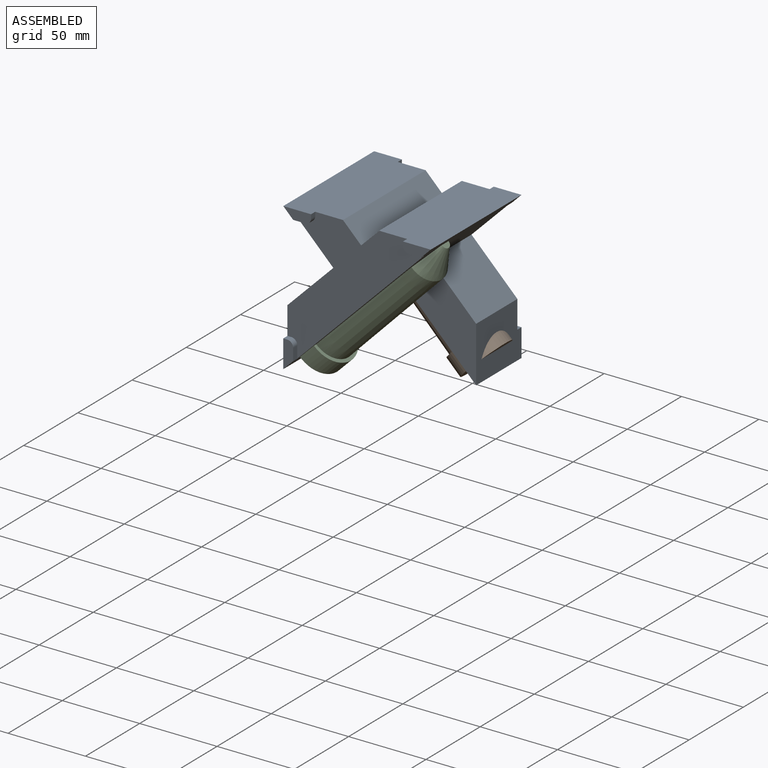
[diagram: assembled view]
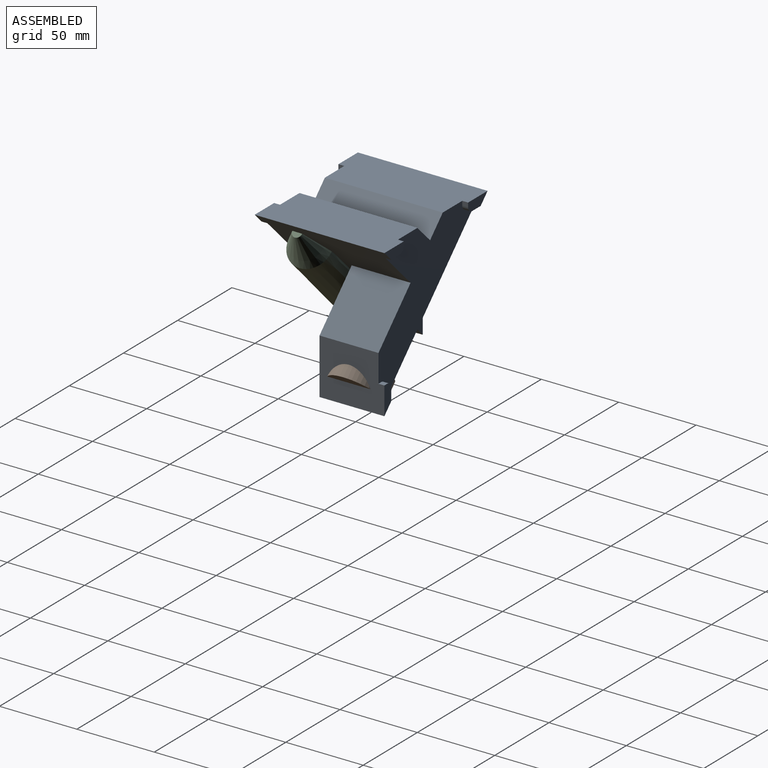
[diagram: assembled view, second angle]
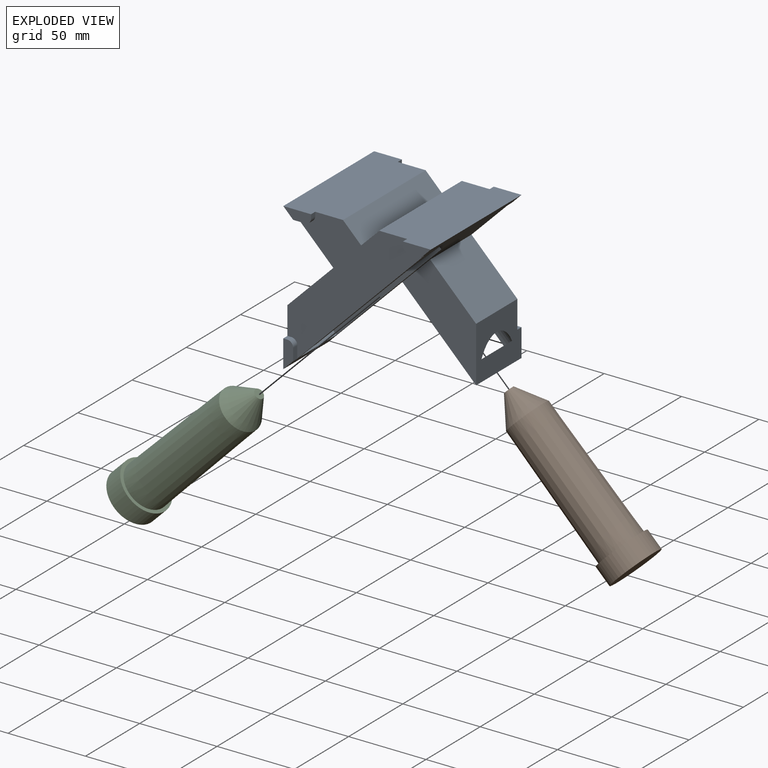
[diagram: exploded view]
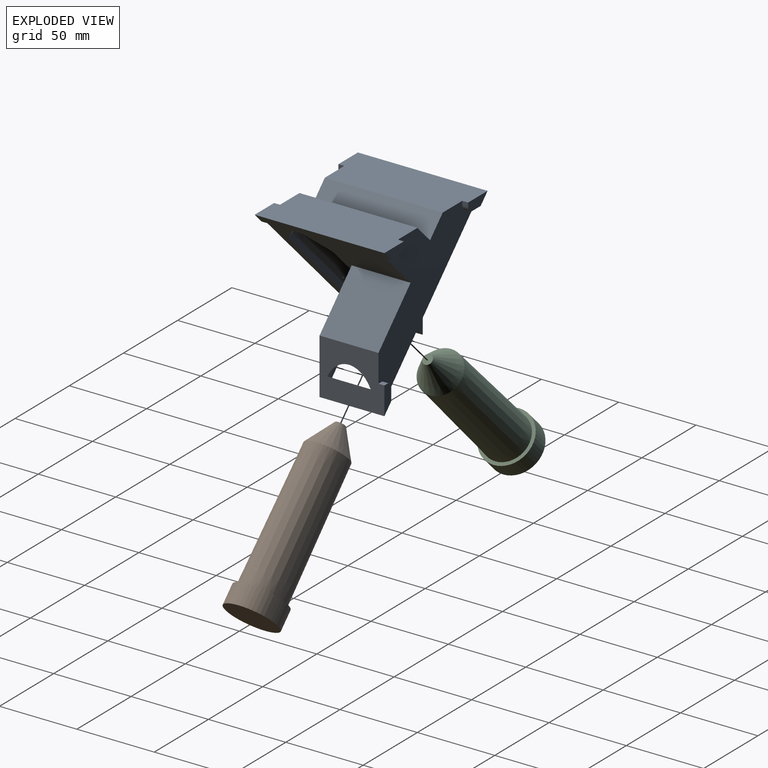
[diagram: exploded view, second angle]
ASSEMBLY  parts=3 mates=4
PART A: 50 faces, bbox 105.8x83.8x95.3 mm
  f0: plane 95.25x95.25mm, normal (-0.71,0,0.71), area 3600.8mm2, adj f3,f4,f5,f9,f10,f21,f22,f23
  f1: plane 95.25x95.25mm, normal (0.71,0,0.71), area 3600.8mm2, adj f2,f4,f8,f10,f13,f14,f15,f18
  f2: plane 41.91x35.92mm, normal (-1,0,0), area 1227.7mm2, adj f1,f4,f9,f10,f11,f14,f44,f45
  f3: plane 41.91x35.92mm, normal (1,0,0), area 1227.7mm2, adj f0,f23,f24,f25,f26,f29,f38,f39
  f4: plane 88.9x88.9mm, normal (0,1,0), area 3247mm2, adj f0,f1,f2,f5,f6,f7,f8,f9
  f5: plane 83.82x35.92mm, normal (0,0,-1), area 2874mm2, adj f0,f4,f6,f19,f22,f24,f32,f33
  f6: plane 76.2x11.7mm, normal (0.71,0,-0.71), area 1261.3mm2, adj f4,f5,f7,f24
  f7: plane 76.2x11.7mm, normal (-0.71,0,-0.71), area 1261.3mm2, adj f4,f6,f8,f24
  f8: plane 83.82x35.92mm, normal (0,0,-1), area 2874mm2, adj f1,f4,f7,f17,f18,f24,f34,f37
  f9: plane 38.1x29.66mm, normal (-0.71,0,-0.71), area 1598.4mm2, adj f0,f2,f4,f10
  f10: plane 65.59x47.63mm, normal (0,-1,0), area 1388.2mm2, adj f0,f1,f2,f9
  f11: plane 3.81x2.54mm, normal (0,0,-1), area 9.7mm2, adj f2,f4,f12,f14
  f12: cylinder r=3.81mm len=3.81mm, axis (0,-1,0), area 22.8mm2, adj f4,f11,f13,f14
  f13: plane 7.8x3.81mm, normal (1,0,0), area 29.7mm2, adj f1,f4,f12,f14
  f14: plane 17.96x6.35mm, normal (0,1,0), area 90.8mm2, adj f1,f2,f11,f12,f13
  f15: plane 7.8x3.81mm, normal (0,0,1), area 29.7mm2, adj f1,f4,f16,f18
  f16: cylinder r=3.81mm len=3.81mm, axis (0,-1,0), area 22.8mm2, adj f4,f15,f17,f18
  f17: plane 3.81x2.54mm, normal (-1,0,0), area 9.7mm2, adj f4,f8,f16,f18
  f18: plane 17.96x6.35mm, normal (0,1,0), area 90.8mm2, adj f1,f8,f15,f16,f17
  f19: plane 3.81x2.54mm, normal (1,0,0), area 9.7mm2, adj f4,f5,f20,f22
  f20: cylinder r=3.81mm len=3.81mm, axis (0,-1,0), area 22.8mm2, adj f4,f19,f21,f22
  f21: plane 7.8x3.81mm, normal (0,0,1), area 29.7mm2, adj f0,f4,f20,f22
  f22: plane 17.96x6.35mm, normal (0,1,0), area 90.8mm2, adj f0,f5,f19,f20,f21
  f23: plane 65.59x47.63mm, normal (0,1,0), area 1388.2mm2, adj f0,f1,f3,f25
  f24: plane 88.9x88.9mm, normal (0,-1,0), area 3247mm2, adj f0,f1,f3,f5,f6,f7,f8,f25
  f25: plane 38.1x29.66mm, normal (0.71,0,-0.71), area 1598.4mm2, adj f1,f3,f23,f24
  f26: plane 3.81x2.54mm, normal (0,0,-1), area 9.7mm2, adj f3,f24,f27,f29
  f27: cylinder r=3.81mm len=3.81mm, axis (0,1,0), area 22.8mm2, adj f24,f26,f28,f29
  f28: plane 7.8x3.81mm, normal (-1,0,0), area 29.7mm2, adj f0,f24,f27,f29
  f29: plane 17.96x6.35mm, normal (0,-1,0), area 90.8mm2, adj f0,f3,f26,f27,f28
  f30: plane 7.8x3.81mm, normal (0,0,1), area 29.7mm2, adj f0,f24,f31,f33
  f31: cylinder r=3.81mm len=3.81mm, axis (0,1,0), area 22.8mm2, adj f24,f30,f32,f33
  f32: plane 3.81x2.54mm, normal (1,0,0), area 9.7mm2, adj f5,f24,f31,f33
  f33: plane 17.96x6.35mm, normal (0,-1,0), area 90.8mm2, adj f0,f5,f30,f31,f32
  f34: plane 3.81x2.54mm, normal (-1,0,0), area 9.7mm2, adj f8,f24,f35,f37
  f35: cylinder r=3.81mm len=3.81mm, axis (0,1,0), area 22.8mm2, adj f24,f34,f36,f37
  f36: plane 7.8x3.81mm, normal (0,0,1), area 29.7mm2, adj f1,f24,f35,f37
  f37: plane 17.96x6.35mm, normal (0,-1,0), area 90.8mm2, adj f1,f8,f34,f35,f36
  f38: cylinder r=16.93mm len=33.86mm, axis (-0.71,0,-0.71), area 512.6mm2, adj f0,f3,f39,f43
  f39: plane 33.86x6.68mm, normal (-0.71,0,-0.71), area 302.2mm2, adj f0,f3,f38
  f40: plane 6.35x2.25mm, normal (0.71,0,0.71), area 15.8mm2, adj f0,f41
  f41: cone r=13.91mm half-angle=32.2deg, axis (0.71,0,0.71), area 561.2mm2, adj f0,f40,f42
  f42: cone r=15.01mm half-angle=0.6deg, axis (0.71,0,0.71), area 3927.6mm2, adj f0,f41,f43
  f43: plane 33.86x11.97mm, normal (0.71,0,0.71), area 96.2mm2, adj f0,f38,f42
  f44: cylinder r=16.93mm len=33.86mm, axis (0.71,0,-0.71), area 512.6mm2, adj f1,f2,f45,f49
  f45: plane 33.86x6.68mm, normal (0.71,0,-0.71), area 302.2mm2, adj f1,f2,f44
  f46: plane 6.35x2.25mm, normal (-0.71,0,0.71), area 15.8mm2, adj f1,f47
  f47: cone r=13.91mm half-angle=32.2deg, axis (-0.71,0,0.71), area 561.2mm2, adj f1,f46,f48
  f48: cone r=15.01mm half-angle=0.6deg, axis (-0.71,0,0.71), area 3927.6mm2, adj f1,f47,f49
  f49: plane 33.86x11.97mm, normal (-0.71,0,0.71), area 96.2mm2, adj f1,f44,f48
PART B: 6 faces, bbox 96.1x33.9x96.1 mm
  f0: plane 6.35x4.49mm, normal (0.71,0,-0.71), area 31.7mm2, adj f1
  f1: cone r=13.91mm half-angle=32.2deg, axis (-0.71,0,0.71), area 1079.7mm2, adj f0,f2
  f2: cone r=14.76mm half-angle=0.6deg, axis (-0.71,0,0.71), area 7754.2mm2, adj f1,f3
  f3: plane 33.86x23.94mm, normal (0.71,0,-0.71), area 216.2mm2, adj f2,f4
  f4: cylinder r=16.93mm len=33.86mm, axis (0.71,0,-0.71), area 1350.9mm2, adj f3,f5
  f5: plane 33.86x23.94mm, normal (-0.71,0,0.71), area 900.4mm2, adj f4
PART C: same geometry as B
PLACE A rot(axis=(0,-1,0),180deg) t=(-1113.66,-6.84,240.69)mm
PLACE B rot(axis=(0,-1,0),180deg) t=(-1113.66,-6.84,240.69)mm
PLACE C rot(axis=(0,-1,0),90deg) t=(-389.26,-44.94,869.34)mm
MATE cylindrical C.f4 <-> A.f41  axis (0.71,0,0.71) through (-473.6,-44.94,156.36)mm
MATE planar A.f45 <-> B.f4  axis (-0.71,0,0.71) through (-392.95,-6.84,155.1)mm
MATE cylindrical B.f4 <-> A.f48  axis (-0.71,0,0.71) through (-400.68,-6.84,156.36)mm
MATE planar A.f39 <-> C.f4  axis (0.71,0,0.71) through (-481.33,-44.94,155.1)mm
